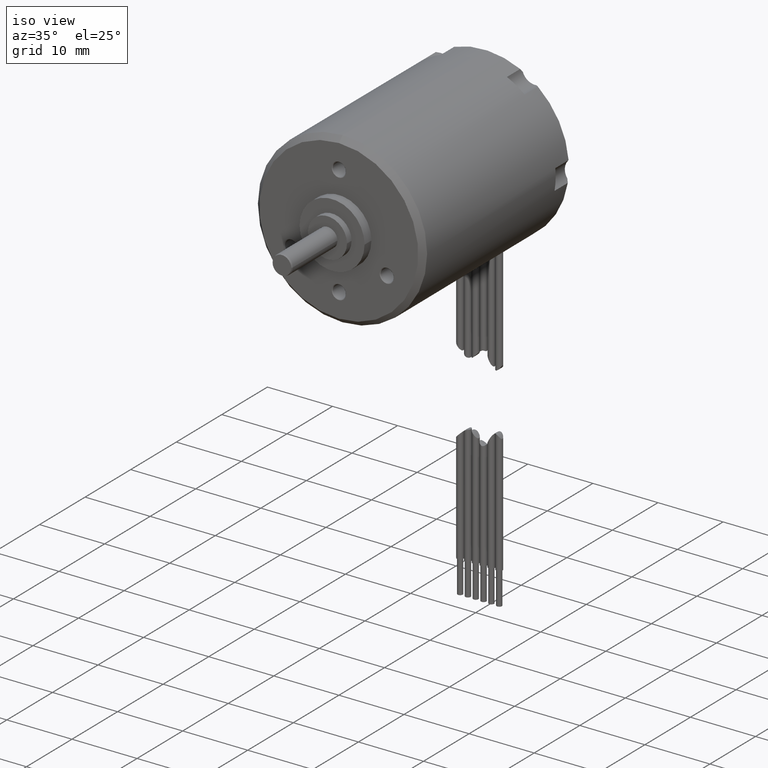
[diagram: clean part render]
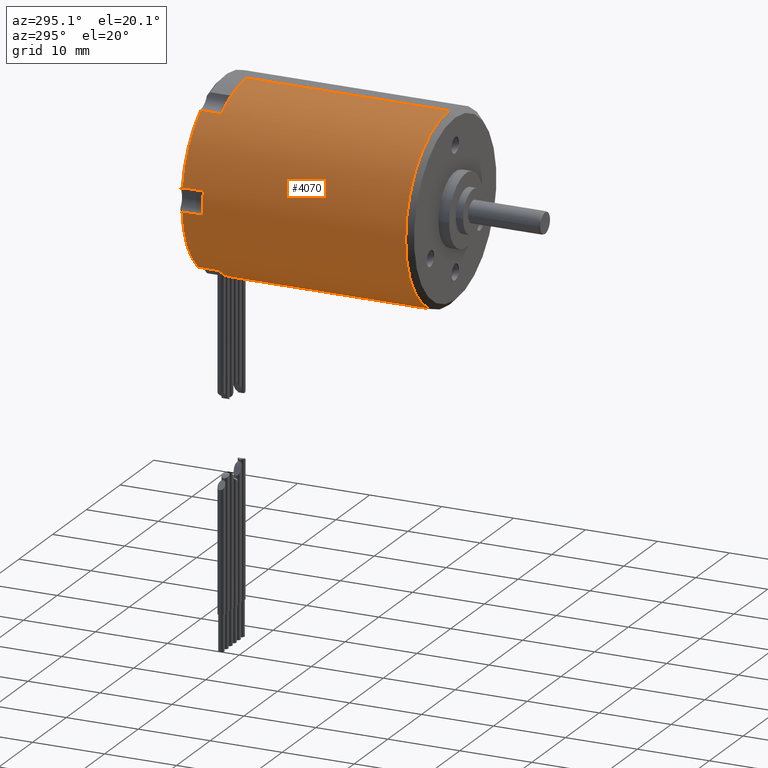
[diagram: tour spotlight — one face highlighted and labeled with its STEP entity id]
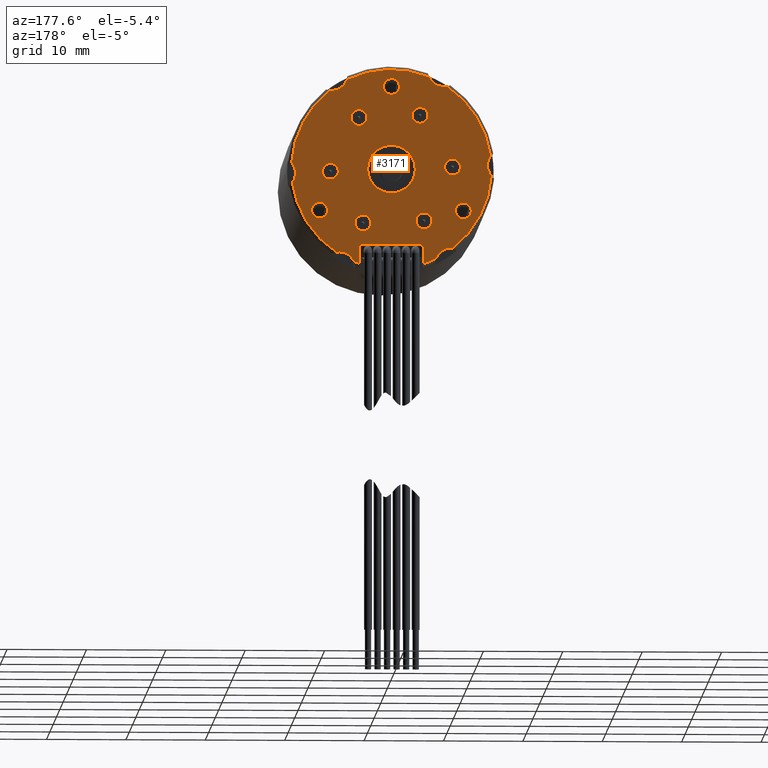
[diagram: tour spotlight — one face highlighted and labeled with its STEP entity id]
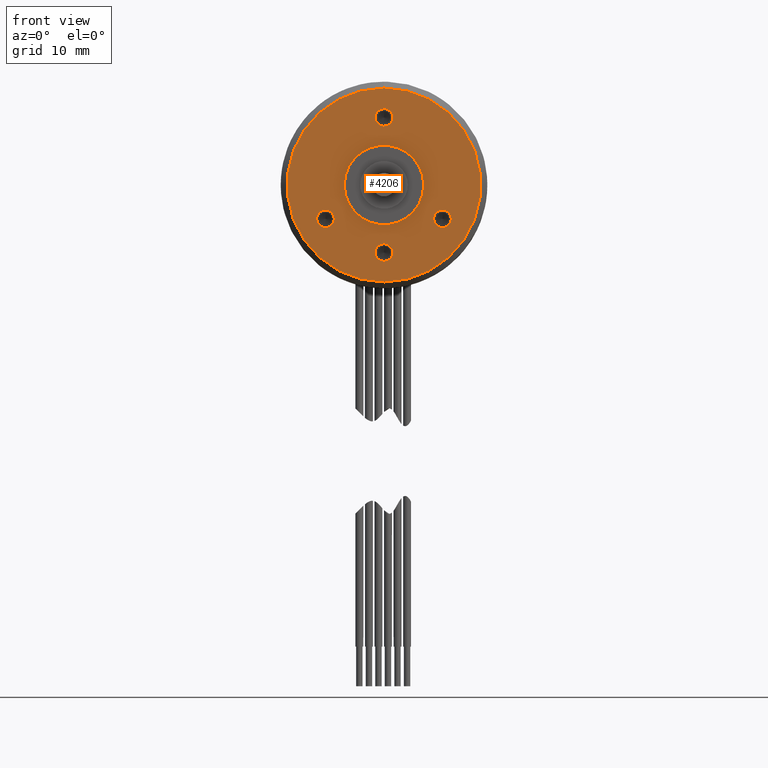
[diagram: tour spotlight — one face highlighted and labeled with its STEP entity id]
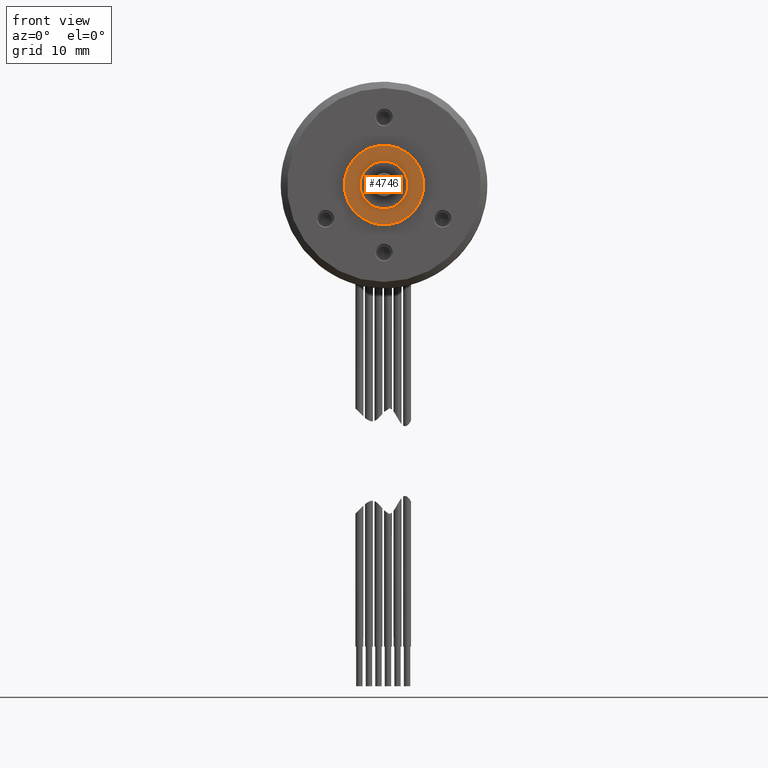
[diagram: tour spotlight — one face highlighted and labeled with its STEP entity id]
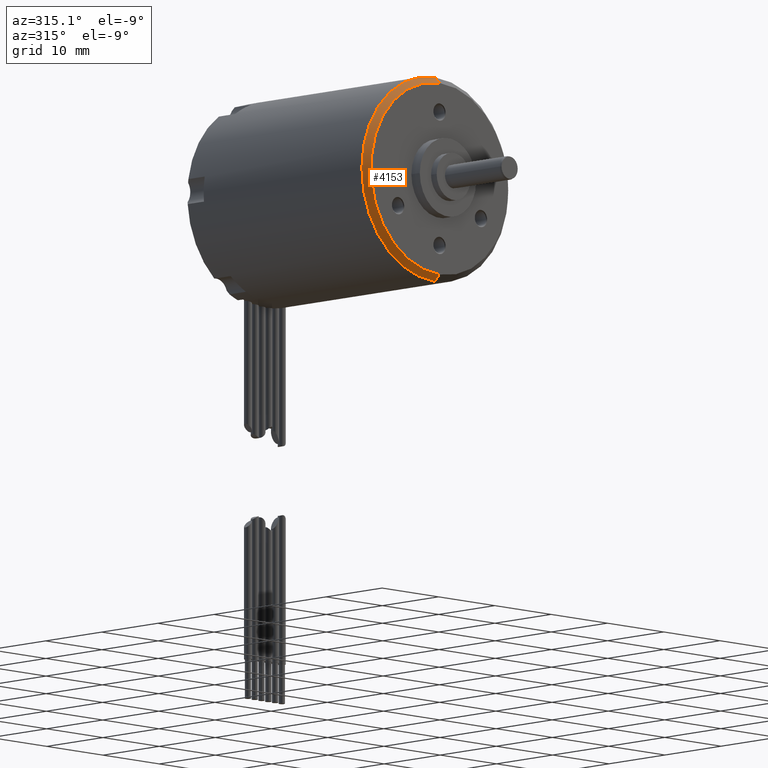
[diagram: tour spotlight — one face highlighted and labeled with its STEP entity id]
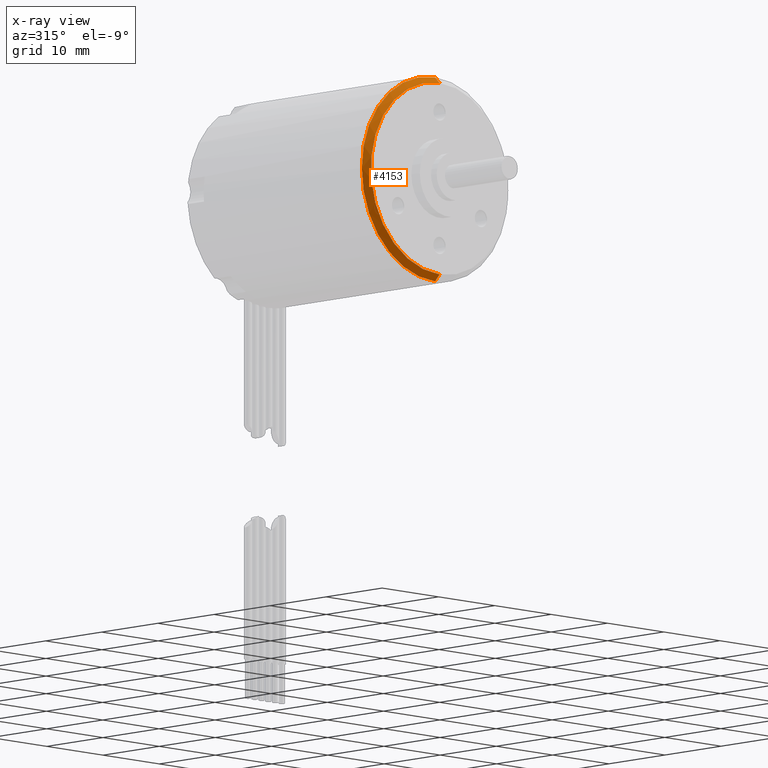
[diagram: x-ray of the same camera — body ghosted, this tour face saturated]
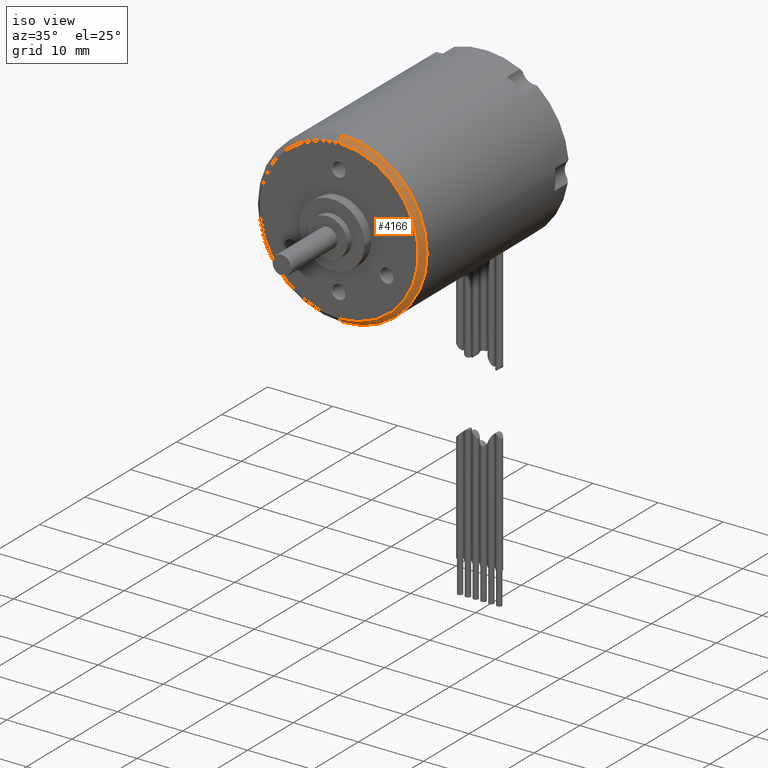
[diagram: tour spotlight — one face highlighted and labeled with its STEP entity id]
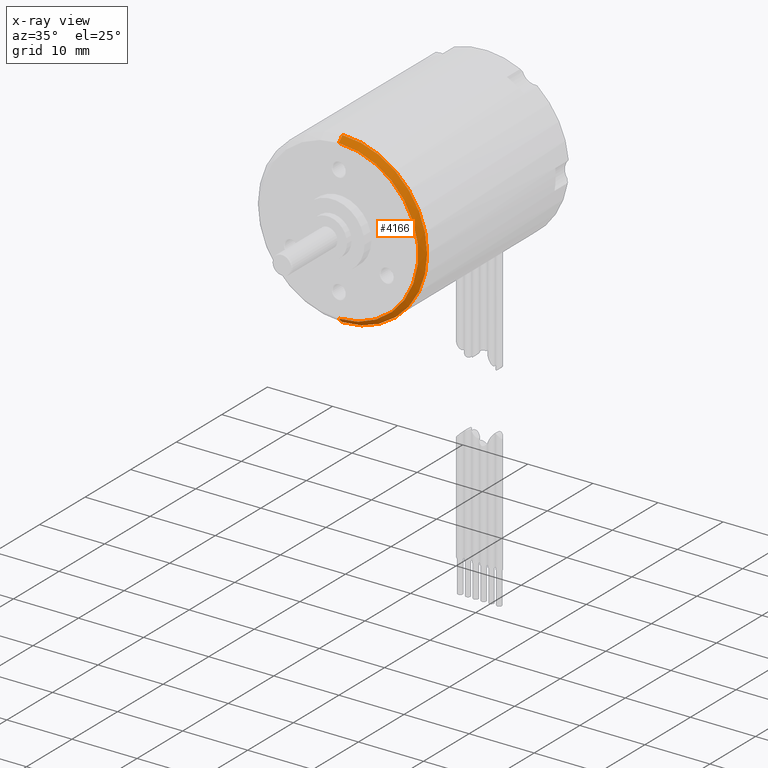
[diagram: x-ray of the same camera — body ghosted, this tour face saturated]
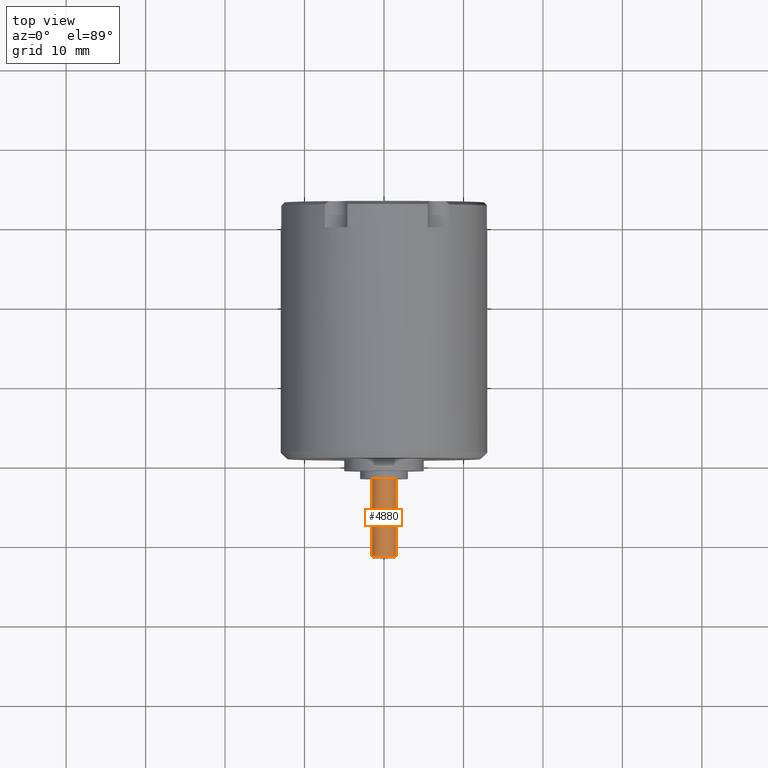
[diagram: tour spotlight — one face highlighted and labeled with its STEP entity id]
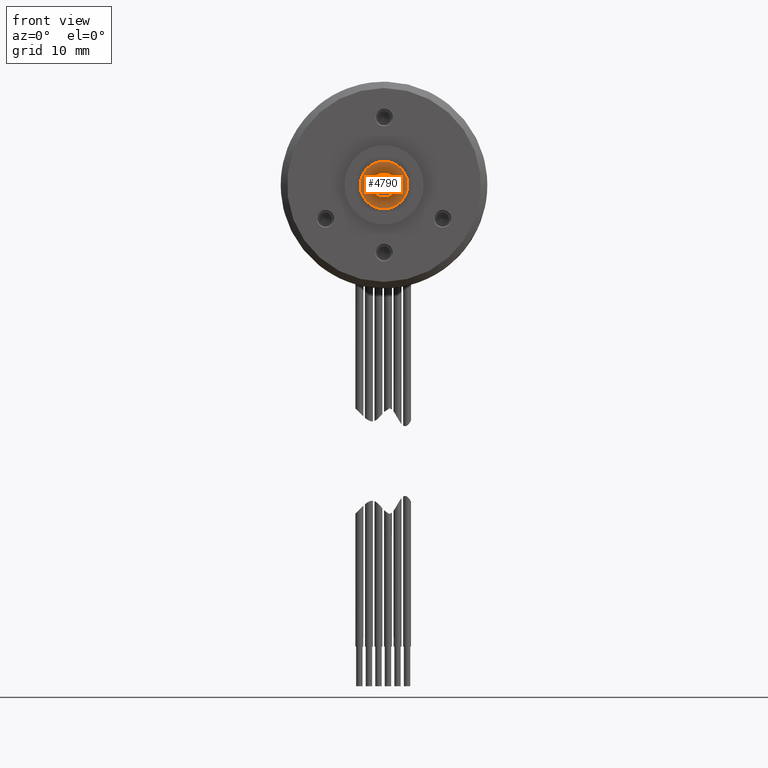
[diagram: tour spotlight — one face highlighted and labeled with its STEP entity id]
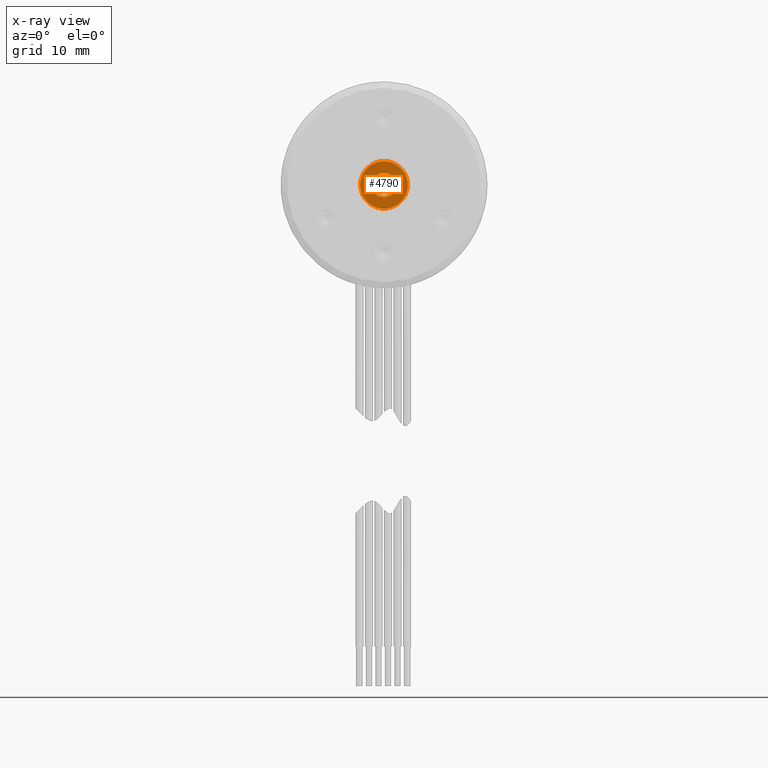
[diagram: x-ray of the same camera — body ghosted, this tour face saturated]
A machine part: a face-by-face anatomy tour. The part has 253 B-rep faces; the first image is the clean iso view, then the 8 largest visible faces are spotlighted one at a time (largest first), each with its STEP entity span.

Face 1 — auxiliary view, entity #4070. In plain terms, the highlighted cylindrical surface (partial cylindrical patch) has radius 13 mm, axis along (0, -1, 0).
Definition (entity closure, byte-faithful):
#207=CARTESIAN_POINT('',(0.E0,2.9E1,0.E0));
#208=DIRECTION('',(0.E0,-1.E0,0.E0));
#209=DIRECTION('',(-9.869516052119E-1,0.E0,1.610171697975E-1));
#210=AXIS2_PLACEMENT_3D('',#207,#208,#209);
#217=CARTESIAN_POINT('',(0.E0,2.9E1,0.E0));
#218=DIRECTION('',(0.E0,-1.E0,0.E0));
#219=DIRECTION('',(-6.329207621011E-1,0.E0,-7.742165775165E-1));
#220=AXIS2_PLACEMENT_3D('',#217,#218,#219);
#227=CARTESIAN_POINT('',(0.E0,2.9E1,0.E0));
#228=DIRECTION('',(0.E0,-1.E0,0.E0));
#229=DIRECTION('',(-3.540308430648E-1,0.E0,9.352337473374E-1));
#230=AXIS2_PLACEMENT_3D('',#227,#228,#229);
#980=CARTESIAN_POINT('',(-1.295286469153E1,3.190000000012E1,-1.106027253305E0));
#989=DIRECTION('',(4.624058989872E-10,1.E0,-2.361574537332E-10));
#990=VECTOR('',#989,2.900000000153E0);
#991=CARTESIAN_POINT('',(-8.227969907314E0,2.9E1,-1.006481550771E1));
#992=LINE('',#991,#990);
#993=CARTESIAN_POINT('',(0.E0,3.19E1,0.E0));
#994=DIRECTION('',(0.E0,1.E0,0.E0));
#995=DIRECTION('',(-6.329207620239E-1,0.E0,-7.742165775796E-1));
#996=AXIS2_PLACEMENT_3D('',#993,#994,#995);
#998=DIRECTION('',(-1.182134849728E-11,-1.E0,4.706745338105E-10));
#999=VECTOR('',#998,2.900000000124E0);
#1000=CARTESIAN_POINT('',(-1.295286469153E1,3.190000000012E1,
-1.106027253305E0));
#1001=LINE('',#1000,#999);
#1002=DIRECTION('',(-2.143878943990E-11,1.E0,-3.964445629806E-10));
#1003=VECTOR('',#1002,2.900000000153E0);
#1004=CARTESIAN_POINT('',(-1.283037086776E1,2.9E1,2.093223207368E0));
#1005=LINE('',#1004,#1003);
#1006=CARTESIAN_POINT('',(0.E0,2.9E1,0.E0));
#1007=DIRECTION('',(0.E0,1.E0,0.E0));
#1008=DIRECTION('',(-3.540308430648E-1,0.E0,9.352337473374E-1));
#1009=AXIS2_PLACEMENT_3D('',#1006,#1007,#1008);
#1011=DIRECTION('',(-1.969809791966E-11,-1.E0,1.209434443847E-14));
#1012=VECTOR('',#1011,2.82E1);
#1013=CARTESIAN_POINT('',(-1.555362689773E-9,2.9E1,1.3E1));
#1014=LINE('',#1013,#1012);
#1015=DIRECTION('',(2.746610921431E-11,1.E0,1.209434443847E-14));
#1016=VECTOR('',#1015,2.82E1);
#1017=CARTESIAN_POINT('',(-7.745458718845E-10,7.999999999997E-1,-1.3E1));
#1018=LINE('',#1017,#1016);
#1019=CARTESIAN_POINT('',(0.E0,2.9E1,0.E0));
#1020=DIRECTION('',(0.E0,1.E0,0.E0));
#1021=DIRECTION('',(0.E0,0.E0,-1.E0));
#1022=AXIS2_PLACEMENT_3D('',#1019,#1020,#1021);
#1029=CARTESIAN_POINT('',(-7.434280043073E0,3.190000000016E1,1.066449624862E1));
#1031=CARTESIAN_POINT('',(0.E0,3.19E1,0.E0));
#1032=DIRECTION('',(0.E0,-1.E0,0.E0));
#1033=DIRECTION('',(-5.718676957575E-1,0.E0,8.203458651990E-1));
#1034=AXIS2_PLACEMENT_3D('',#1031,#1032,#1033);
#1043=DIRECTION('',(-8.390070247301E-11,1.E0,-1.299411153320E-10));
#1044=VECTOR('',#1043,2.900000000155E0);
#1045=CARTESIAN_POINT('',(-7.434280042830E0,2.9E1,1.066449624899E1));
#1046=LINE('',#1045,#1044);
#1077=CARTESIAN_POINT('',(0.E0,7.999999999993E-1,0.E0));
#1078=DIRECTION('',(0.E0,1.E0,0.E0));
#1079=DIRECTION('',(0.E0,0.E0,-1.E0));
#1080=AXIS2_PLACEMENT_3D('',#1077,#1078,#1079);
#2495=CARTESIAN_POINT('',(-7.745458718845E-10,7.999999999997E-1,-1.3E1));
#2497=VERTEX_POINT('',#2495);
#2499=CARTESIAN_POINT('',(-3.110726971586E-9,7.999999999993E-1,1.3E1));
#2500=VERTEX_POINT('',#2499);
#2733=VERTEX_POINT('',#980);
#2734=CARTESIAN_POINT('',(-8.227969906311E0,3.19E1,-1.006481550853E1));
#2735=VERTEX_POINT('',#2734);
#2736=VERTEX_POINT('',#1029);
#2737=CARTESIAN_POINT('',(-1.283037086784E1,3.19E1,2.093223206863E0));
#2738=VERTEX_POINT('',#2737);
#2915=CARTESIAN_POINT('',(0.E0,2.9E1,-1.3E1));
#2916=CARTESIAN_POINT('',(-5.518584649016E0,2.9E1,-1.177052350032E1));
#2917=VERTEX_POINT('',#2915);
#2918=VERTEX_POINT('',#2916);
#2919=CARTESIAN_POINT('',(-4.602400959842E0,2.9E1,1.215803871539E1));
#2920=CARTESIAN_POINT('',(-3.110726787270E-9,2.9E1,1.3E1));
#2921=VERTEX_POINT('',#2919);
#2922=VERTEX_POINT('',#2920);
#2935=CARTESIAN_POINT('',(-7.434280042830E0,2.9E1,1.066449624899E1));
#2936=VERTEX_POINT('',#2935);
#2937=CARTESIAN_POINT('',(-1.283037086776E1,2.9E1,2.093223207368E0));
#2938=CARTESIAN_POINT('',(-1.295286469156E1,2.9E1,-1.106027251940E0));
#2939=VERTEX_POINT('',#2937);
#2940=VERTEX_POINT('',#2938);
#2941=CARTESIAN_POINT('',(-8.227969907314E0,2.9E1,-1.006481550771E1));
#2942=VERTEX_POINT('',#2941);
#4046=CARTESIAN_POINT('',(0.E0,2.9564E1,0.E0));
#4047=DIRECTION('',(0.E0,-1.E0,0.E0));
#4048=DIRECTION('',(0.E0,0.E0,-1.E0));
#4049=AXIS2_PLACEMENT_3D('',#4046,#4047,#4048);
#4050=CYLINDRICAL_SURFACE('',#4049,1.3E1);
#4051=ORIENTED_EDGE('',*,*,#3245,.F.);
#4052=ORIENTED_EDGE('',*,*,#4010,.T.);
#4053=ORIENTED_EDGE('',*,*,#4022,.T.);
#4054=ORIENTED_EDGE('',*,*,#4035,.T.);
#4055=ORIENTED_EDGE('',*,*,#3233,.F.);
#4056=ORIENTED_EDGE('',*,*,#4041,.T.);
#4058=ORIENTED_EDGE('',*,*,#4057,.F.);
#4060=ORIENTED_EDGE('',*,*,#4059,.F.);
#4061=ORIENTED_EDGE('',*,*,#3257,.F.);
#4062=ORIENTED_EDGE('',*,*,#3318,.T.);
#4063=ORIENTED_EDGE('',*,*,#3316,.T.);
#4065=ORIENTED_EDGE('',*,*,#4064,.F.);
#4066=ORIENTED_EDGE('',*,*,#3312,.T.);
#4067=ORIENTED_EDGE('',*,*,#3310,.T.);
#4068=EDGE_LOOP('',(#4051,#4052,#4053,#4054,#4055,#4056,#4058,#4060,#4061,#4062,
#4063,#4065,#4066,#4067));
#4069=FACE_OUTER_BOUND('',#4068,.F.);
#4070=ADVANCED_FACE('',(#4069),#4050,.T.);
#211=CIRCLE('',#210,1.3E1);
#221=CIRCLE('',#220,1.3E1);
#231=CIRCLE('',#230,1.3E1);
#997=CIRCLE('',#996,1.3E1);
#1010=CIRCLE('',#1009,1.3E1);
#1023=CIRCLE('',#1022,1.3E1);
#1035=CIRCLE('',#1034,1.3E1);
#1081=CIRCLE('',#1080,1.3E1);
#3233=EDGE_CURVE('',#2939,#2940,#211,.T.);
#3245=EDGE_CURVE('',#2942,#2918,#221,.T.);
#3257=EDGE_CURVE('',#2921,#2936,#231,.T.);
#3310=EDGE_CURVE('',#2917,#2918,#1023,.T.);
#3312=EDGE_CURVE('',#2497,#2917,#1018,.T.);
#3316=EDGE_CURVE('',#2922,#2500,#1014,.T.);
#3318=EDGE_CURVE('',#2921,#2922,#1010,.T.);
#4010=EDGE_CURVE('',#2942,#2735,#992,.T.);
#4022=EDGE_CURVE('',#2735,#2733,#997,.T.);
#4035=EDGE_CURVE('',#2733,#2940,#1001,.T.);
#4041=EDGE_CURVE('',#2939,#2738,#1005,.T.);
#4057=EDGE_CURVE('',#2736,#2738,#1035,.T.);
#4059=EDGE_CURVE('',#2936,#2736,#1046,.T.);
#4064=EDGE_CURVE('',#2497,#2500,#1081,.T.);

Face 2 — auxiliary view, entity #3171. In plain terms, the highlighted planar face has unit normal (0, 1, 0).
Definition (entity closure, byte-faithful):
#9=CARTESIAN_POINT('',(6.577643688E0,3.23E1,-1.247175222300E1));
#10=DIRECTION('',(0.E0,1.E0,0.E0));
#11=DIRECTION('',(-9.167290809652E-1,0.E0,3.995094393287E-1));
#12=AXIS2_PLACEMENT_3D('',#9,#10,#11);
#14=CARTESIAN_POINT('',(0.E0,3.23E1,0.E0));
#15=DIRECTION('',(0.E0,-1.E0,0.E0));
#16=DIRECTION('',(5.518812947483E-1,0.E0,-8.339226801730E-1));
#17=AXIS2_PLACEMENT_3D('',#14,#15,#16);
#19=CARTESIAN_POINT('',(0.E0,3.23E1,0.E0));
#20=DIRECTION('',(0.E0,-1.E0,0.E0));
#21=DIRECTION('',(9.981388732010E-1,0.E0,6.098188095645E-2));
#22=AXIS2_PLACEMENT_3D('',#19,#20,#21);
#24=CARTESIAN_POINT('',(7.512032411E0,3.23E1,1.193228264300E1));
#25=DIRECTION('',(0.E0,1.E0,0.E0));
#26=DIRECTION('',(1.123792203164E-1,0.E0,-9.936653917900E-1));
#27=AXIS2_PLACEMENT_3D('',#24,#25,#26);
#29=CARTESIAN_POINT('',(0.E0,3.23E1,0.E0));
#30=DIRECTION('',(0.E0,-1.E0,0.E0));
#31=DIRECTION('',(4.462575781263E-1,0.E0,8.949045613723E-1));
#32=AXIS2_PLACEMENT_3D('',#29,#30,#31);
#34=CARTESIAN_POINT('',(-6.577643688E0,3.23E1,1.247175222300E1));
#35=DIRECTION('',(0.E0,1.E0,0.E0));
#36=DIRECTION('',(9.167290790689E-1,0.E0,-3.995094436800E-1));
#37=AXIS2_PLACEMENT_3D('',#34,#35,#36);
#39=CARTESIAN_POINT('',(0.E0,3.23E1,0.E0));
#40=DIRECTION('',(0.E0,-1.E0,0.E0));
#41=DIRECTION('',(-5.518812946032E-1,0.E0,8.339226802690E-1));
#42=AXIS2_PLACEMENT_3D('',#39,#40,#41);
#44=CARTESIAN_POINT('',(-1.408967609900E1,3.23E1,5.3946958E-1));
#45=DIRECTION('',(0.E0,1.E0,0.E0));
#46=DIRECTION('',(8.043498662246E-1,0.E0,5.941559498182E-1));
#47=AXIS2_PLACEMENT_3D('',#44,#45,#46);
#49=CARTESIAN_POINT('',(0.E0,3.23E1,0.E0));
#50=DIRECTION('',(0.E0,-1.E0,0.E0));
#51=DIRECTION('',(-9.981388732234E-1,0.E0,-6.098188059023E-2));
#52=AXIS2_PLACEMENT_3D('',#49,#50,#51);
#54=CARTESIAN_POINT('',(-7.512032411E0,3.23E1,-1.193228264300E1));
#55=DIRECTION('',(0.E0,1.E0,0.E0));
#56=DIRECTION('',(-1.123792167600E-1,0.E0,9.936653921922E-1));
#57=AXIS2_PLACEMENT_3D('',#54,#55,#56);
#59=CARTESIAN_POINT('',(0.E0,3.23E1,0.E0));
#60=DIRECTION('',(0.E0,-1.E0,0.E0));
#61=DIRECTION('',(-4.462575785362E-1,0.E0,-8.949045611678E-1));
#62=AXIS2_PLACEMENT_3D('',#59,#60,#61);
#64=DIRECTION('',(7.071067822439E-1,0.E0,7.071067801292E-1));
#65=VECTOR('',#64,4.242640669333E-1);
#66=CARTESIAN_POINT('',(-3.999999998679E0,3.23E1,-9.821194603658E0));
#67=LINE('',#66,#65);
#68=DIRECTION('',(7.071067815920E-1,1.674765294537E-14,-7.071067807811E-1));
#69=VECTOR('',#68,4.242640673759E-1);
#70=CARTESIAN_POINT('',(3.699999999712E0,3.23E1,-9.521194605035E0));
#71=LINE('',#70,#69);
#72=CARTESIAN_POINT('',(0.E0,3.23E1,0.E0));
#73=DIRECTION('',(0.E0,-1.E0,0.E0));
#74=DIRECTION('',(3.174603173850E-1,0.E0,-9.482715575645E-1));
#75=AXIS2_PLACEMENT_3D('',#72,#73,#74);
#77=CARTESIAN_POINT('',(-9.04996547E0,3.23E1,-5.225E0));
#78=DIRECTION('',(0.E0,1.E0,0.E0));
#79=DIRECTION('',(1.E0,0.E0,4.694237887293E-9));
#80=AXIS2_PLACEMENT_3D('',#77,#78,#79);
#82=CARTESIAN_POINT('',(-9.04996547E0,3.23E1,-5.225E0));
#83=DIRECTION('',(0.E0,1.E0,0.E0));
#84=DIRECTION('',(-1.E0,0.E0,4.694239663650E-9));
#85=AXIS2_PLACEMENT_3D('',#82,#83,#84);
#87=CARTESIAN_POINT('',(9.04996547E0,3.23E1,-5.225E0));
#88=DIRECTION('',(0.E0,1.E0,0.E0));
#89=DIRECTION('',(1.E0,0.E0,4.694237887293E-9));
#90=AXIS2_PLACEMENT_3D('',#87,#88,#89);
#92=CARTESIAN_POINT('',(9.04996547E0,3.23E1,-5.225E0));
#93=DIRECTION('',(0.E0,1.E0,0.E0));
#94=DIRECTION('',(-1.E0,0.E0,4.694239663650E-9));
#95=AXIS2_PLACEMENT_3D('',#92,#93,#94);
#97=CARTESIAN_POINT('',(0.E0,3.23E1,1.045E1));
#98=DIRECTION('',(0.E0,1.E0,0.E0));
#99=DIRECTION('',(1.E0,0.E0,-8.995218792052E-9));
#100=AXIS2_PLACEMENT_3D('',#97,#98,#99);
#102=CARTESIAN_POINT('',(0.E0,3.23E1,1.045E1));
#103=DIRECTION('',(0.E0,1.E0,0.E0));
#104=DIRECTION('',(-1.E0,0.E0,-8.995218792052E-9));
#105=AXIS2_PLACEMENT_3D('',#102,#103,#104);
#107=CARTESIAN_POINT('',(4.102315572E0,3.23E1,6.516211088E0));
#108=DIRECTION('',(0.E0,1.E0,0.E0));
#109=DIRECTION('',(1.E0,0.E0,-5.681778603162E-9));
#110=AXIS2_PLACEMENT_3D('',#107,#108,#109);
#112=CARTESIAN_POINT('',(4.102315572E0,3.23E1,6.516211088E0));
#113=DIRECTION('',(0.E0,1.E0,0.E0));
#114=DIRECTION('',(-1.E0,0.E0,-5.681785708589E-9));
#115=AXIS2_PLACEMENT_3D('',#112,#113,#114);
#117=CARTESIAN_POINT('',(-3.592046553E0,3.23E1,6.810815044E0));
#118=DIRECTION('',(0.E0,1.E0,0.E0));
#119=DIRECTION('',(1.E0,0.E0,-2.924416264705E-11));
#120=AXIS2_PLACEMENT_3D('',#117,#118,#119);
#122=CARTESIAN_POINT('',(-3.592046553E0,3.23E1,6.810815044E0));
#123=DIRECTION('',(0.E0,1.E0,0.E0));
#124=DIRECTION('',(-1.E0,0.E0,-2.924416264705E-11));
#125=AXIS2_PLACEMENT_3D('',#122,#123,#124);
#127=CARTESIAN_POINT('',(-7.694362125E0,3.23E1,2.94603955E-1));
#128=DIRECTION('',(0.E0,1.E0,0.E0));
#129=DIRECTION('',(1.E0,0.E0,-1.497304114029E-9));
#130=AXIS2_PLACEMENT_3D('',#127,#128,#129);
#132=CARTESIAN_POINT('',(-7.694362125E0,3.23E1,2.94603955E-1));
#133=DIRECTION('',(0.E0,1.E0,0.E0));
#134=DIRECTION('',(-1.E0,0.E0,-1.497307666742E-9));
#135=AXIS2_PLACEMENT_3D('',#132,#133,#134);
#137=CARTESIAN_POINT('',(-4.102315572E0,3.23E1,-6.516211088E0));
#138=DIRECTION('',(0.E0,1.E0,0.E0));
#139=DIRECTION('',(1.E0,0.E0,-1.061790833035E-8));
#140=AXIS2_PLACEMENT_3D('',#137,#138,#139);
#142=CARTESIAN_POINT('',(-4.102315572E0,3.23E1,-6.516211088E0));
#143=DIRECTION('',(0.E0,1.E0,0.E0));
#144=DIRECTION('',(-1.E0,0.E0,-1.061790833035E-8));
#145=AXIS2_PLACEMENT_3D('',#142,#143,#144);
#147=CARTESIAN_POINT('',(3.592046553E0,3.23E1,-6.810815044E0));
#148=DIRECTION('',(0.E0,1.E0,0.E0));
#149=DIRECTION('',(1.E0,0.E0,8.572357046432E-9));
#150=AXIS2_PLACEMENT_3D('',#147,#148,#149);
#152=CARTESIAN_POINT('',(3.592046553E0,3.23E1,-6.810815044E0));
#153=DIRECTION('',(0.E0,1.E0,0.E0));
#154=DIRECTION('',(-1.E0,0.E0,8.572357046432E-9));
#155=AXIS2_PLACEMENT_3D('',#152,#153,#154);
#157=CARTESIAN_POINT('',(7.694362125E0,3.23E1,-2.94603955E-1));
#158=DIRECTION('',(0.E0,1.E0,0.E0));
#159=DIRECTION('',(1.E0,0.E0,1.004042277097E-8));
#160=AXIS2_PLACEMENT_3D('',#157,#158,#159);
#162=CARTESIAN_POINT('',(7.694362125E0,3.23E1,-2.94603955E-1));
#163=DIRECTION('',(0.E0,1.E0,0.E0));
#164=DIRECTION('',(-1.E0,0.E0,1.004042277097E-8));
#165=AXIS2_PLACEMENT_3D('',#162,#163,#164);
#167=CARTESIAN_POINT('',(0.E0,3.23E1,0.E0));
#168=DIRECTION('',(0.E0,1.E0,0.E0));
#169=DIRECTION('',(1.E0,0.E0,-2.716616413304E-9));
#170=AXIS2_PLACEMENT_3D('',#167,#168,#169);
#172=CARTESIAN_POINT('',(0.E0,3.23E1,0.E0));
#173=DIRECTION('',(0.E0,1.E0,0.E0));
#174=DIRECTION('',(-1.E0,0.E0,-2.716614488918E-9));
#175=AXIS2_PLACEMENT_3D('',#172,#173,#174);
#232=CARTESIAN_POINT('',(1.408967609900E1,3.23E1,-5.3946958E-1));
#233=DIRECTION('',(0.E0,-1.E0,0.E0));
#234=DIRECTION('',(-7.565631477280E-1,0.E0,6.539206400626E-1));
#235=AXIS2_PLACEMENT_3D('',#232,#233,#234);
#695=DIRECTION('',(-2.879637269885E-10,0.E0,-1.E0));
#696=VECTOR('',#695,8.999999998417E-1);
#697=CARTESIAN_POINT('',(-3.999999998679E0,3.23E1,-9.821194603658E0));
#698=LINE('',#697,#696);
#743=DIRECTION('',(-1.E0,0.E0,-4.451574244841E-11));
#744=VECTOR('',#743,7.399999999200E0);
#745=CARTESIAN_POINT('',(3.699999999712E0,3.23E1,-9.521194605035E0));
#746=LINE('',#745,#744);
#771=DIRECTION('',(-7.403480651082E-12,-3.456394071094E-10,1.E0));
#772=VECTOR('',#771,2.127027019242E0);
#773=CARTESIAN_POINT('',(3.999999998955E0,3.230000000074E1,-1.194822162316E1));
#774=LINE('',#773,#772);
#928=DIRECTION('',(-1.E0,0.E0,-1.106156540981E-8));
#929=VECTOR('',#928,3.390129239417E-2);
#930=CARTESIAN_POINT('',(-3.999999998938E0,3.23E1,-1.072119460350E1));
#931=LINE('',#930,#929);
#948=DIRECTION('',(-2.486499604841E-11,6.191056691236E-10,-1.E0));
#949=VECTOR('',#948,1.215624081354E0);
#950=CARTESIAN_POINT('',(-4.033901291332E0,3.23E1,-1.072119460388E1));
#951=LINE('',#950,#949);
#2623=CARTESIAN_POINT('',(-1.004996547E1,3.23E1,-5.224999998435E0));
#2624=VERTEX_POINT('',#2623);
#2625=CARTESIAN_POINT('',(-8.04996547E0,3.23E1,-5.224999995306E0));
#2626=VERTEX_POINT('',#2625);
#2627=CARTESIAN_POINT('',(4.744185526070E0,3.23E1,-1.167273334434E1));
#2628=CARTESIAN_POINT('',(6.953704315284E0,3.23E1,-1.050742577238E1));
#2629=VERTEX_POINT('',#2627);
#2630=VERTEX_POINT('',#2628);
#2631=CARTESIAN_POINT('',(1.248097636863E1,3.23E1,-1.727781492458E0));
#2632=VERTEX_POINT('',#2631);
#2633=CARTESIAN_POINT('',(1.257654980233E1,3.23E1,7.683717000512E-1));
#2634=CARTESIAN_POINT('',(7.736790852681E0,3.23E1,9.944951850154E0));
#2635=VERTEX_POINT('',#2633);
#2636=VERTEX_POINT('',#2634);
#2637=CARTESIAN_POINT('',(5.622845487779E0,3.23E1,1.127579748008E1));
#2638=VERTEX_POINT('',#2637);
#2639=CARTESIAN_POINT('',(-4.744185536641E0,3.23E1,1.167273333859E1));
#2640=VERTEX_POINT('',#2639);
#2641=CARTESIAN_POINT('',(-6.953704312274E0,3.23E1,1.050742577180E1));
#2642=VERTEX_POINT('',#2641);
#2643=CARTESIAN_POINT('',(-1.248097637084E1,3.23E1,1.727781476464E0));
#2644=VERTEX_POINT('',#2643);
#2645=CARTESIAN_POINT('',(-1.257654979932E1,3.23E1,-7.683716952354E-1));
#2646=VERTEX_POINT('',#2645);
#2647=CARTESIAN_POINT('',(-7.736790844782E0,3.23E1,-9.944951856299E0));
#2648=VERTEX_POINT('',#2647);
#2649=CARTESIAN_POINT('',(-5.622845490427E0,3.23E1,-1.127579747246E1));
#2650=VERTEX_POINT('',#2649);
#2651=CARTESIAN_POINT('',(-4.033901290858E0,3.23E1,-1.193681868739E1));
#2652=VERTEX_POINT('',#2651);
#2653=CARTESIAN_POINT('',(-3.999999998679E0,3.23E1,-9.821194603658E0));
#2654=CARTESIAN_POINT('',(-3.699999999488E0,3.23E1,-9.521194605365E0));
#2655=VERTEX_POINT('',#2653);
#2656=VERTEX_POINT('',#2654);
#2657=CARTESIAN_POINT('',(3.699999999712E0,3.23E1,-9.521194605035E0));
#2658=CARTESIAN_POINT('',(3.999999998939E0,3.23E1,-9.821194603918E0));
#2659=VERTEX_POINT('',#2657);
#2660=VERTEX_POINT('',#2658);
#2661=CARTESIAN_POINT('',(3.999999999051E0,3.23E1,-1.194822162531E1));
#2662=VERTEX_POINT('',#2661);
#2663=CARTESIAN_POINT('',(1.004996547E1,3.23E1,-5.224999995306E0));
#2664=CARTESIAN_POINT('',(8.04996547E0,3.23E1,-5.224999995306E0));
#2665=VERTEX_POINT('',#2663);
#2666=VERTEX_POINT('',#2664);
#2667=CARTESIAN_POINT('',(1.E0,3.23E1,1.044999999100E1));
#2668=CARTESIAN_POINT('',(-1.E0,3.23E1,1.044999999100E1));
#2669=VERTEX_POINT('',#2667);
#2670=VERTEX_POINT('',#2668);
#2671=CARTESIAN_POINT('',(5.102315572E0,3.23E1,6.516211082318E0));
#2672=CARTESIAN_POINT('',(3.102315572E0,3.23E1,6.516211082318E0));
#2673=VERTEX_POINT('',#2671);
#2674=VERTEX_POINT('',#2672);
#2675=CARTESIAN_POINT('',(-2.592046553E0,3.23E1,6.810815043971E0));
#2676=CARTESIAN_POINT('',(-4.592046553E0,3.23E1,6.810815043971E0));
#2677=VERTEX_POINT('',#2675);
#2678=VERTEX_POINT('',#2676);
#2679=CARTESIAN_POINT('',(-6.694362125E0,3.23E1,2.946039535027E-1));
#2680=CARTESIAN_POINT('',(-8.694362125E0,3.23E1,2.946039535027E-1));
#2681=VERTEX_POINT('',#2679);
#2682=VERTEX_POINT('',#2680);
#2683=CARTESIAN_POINT('',(-3.102315572E0,3.23E1,-6.516211098618E0));
#2684=CARTESIAN_POINT('',(-5.102315572E0,3.23E1,-6.516211098618E0));
#2685=VERTEX_POINT('',#2683);
#2686=VERTEX_POINT('',#2684);
#2687=CARTESIAN_POINT('',(4.592046553E0,3.23E1,-6.810815035428E0));
#2688=CARTESIAN_POINT('',(2.592046553E0,3.23E1,-6.810815035428E0));
#2689=VERTEX_POINT('',#2687);
#2690=VERTEX_POINT('',#2688);
#2691=CARTESIAN_POINT('',(8.694362125E0,3.23E1,-2.946039449596E-1));
#2692=CARTESIAN_POINT('',(6.694362125E0,3.23E1,-2.946039449596E-1));
#2693=VERTEX_POINT('',#2691);
#2694=VERTEX_POINT('',#2692);
#2695=CARTESIAN_POINT('',(3.E0,3.23E1,-8.149849239913E-9));
#2696=CARTESIAN_POINT('',(-3.E0,3.23E1,-8.149843390059E-9));
#2697=VERTEX_POINT('',#2695);
#2698=VERTEX_POINT('',#2696);
#2727=CARTESIAN_POINT('',(-4.033901291332E0,3.23E1,-1.072119460387E1));
#2728=VERTEX_POINT('',#2727);
#2729=CARTESIAN_POINT('',(-3.999999998938E0,3.23E1,-1.072119460350E1));
#2730=VERTEX_POINT('',#2729);
#3065=CARTESIAN_POINT('',(5.540350400679E-10,3.23E1,3.278341597976E-1));
#3066=DIRECTION('',(0.E0,1.E0,0.E0));
#3067=DIRECTION('',(1.E0,0.E0,0.E0));
#3068=AXIS2_PLACEMENT_3D('',#3065,#3066,#3067);
#3069=PLANE('',#3068);
#3071=ORIENTED_EDGE('',*,*,#3070,.T.);
#3073=ORIENTED_EDGE('',*,*,#3072,.T.);
#3075=ORIENTED_EDGE('',*,*,#3074,.F.);
#3077=ORIENTED_EDGE('',*,*,#3076,.T.);
#3079=ORIENTED_EDGE('',*,*,#3078,.T.);
#3081=ORIENTED_EDGE('',*,*,#3080,.T.);
#3083=ORIENTED_EDGE('',*,*,#3082,.T.);
#3085=ORIENTED_EDGE('',*,*,#3084,.T.);
#3087=ORIENTED_EDGE('',*,*,#3086,.T.);
#3089=ORIENTED_EDGE('',*,*,#3088,.T.);
#3091=ORIENTED_EDGE('',*,*,#3090,.T.);
#3093=ORIENTED_EDGE('',*,*,#3092,.T.);
#3095=ORIENTED_EDGE('',*,*,#3094,.F.);
#3097=ORIENTED_EDGE('',*,*,#3096,.F.);
#3099=ORIENTED_EDGE('',*,*,#3098,.F.);
#3101=ORIENTED_EDGE('',*,*,#3100,.T.);
#3103=ORIENTED_EDGE('',*,*,#3102,.F.);
#3105=ORIENTED_EDGE('',*,*,#3104,.T.);
#3107=ORIENTED_EDGE('',*,*,#3106,.F.);
#3109=ORIENTED_EDGE('',*,*,#3108,.T.);
#3110=EDGE_LOOP('',(#3071,#3073,#3075,#3077,#3079,#3081,#3083,#3085,#3087,#3089,
#3091,#3093,#3095,#3097,#3099,#3101,#3103,#3105,#3107,#3109));
#3111=FACE_OUTER_BOUND('',#3110,.F.);
#3113=ORIENTED_EDGE('',*,*,#3112,.T.);
#3115=ORIENTED_EDGE('',*,*,#3114,.T.);
#3116=EDGE_LOOP('',(#3113,#3115));
#3117=FACE_BOUND('',#3116,.F.);
#3119=ORIENTED_EDGE('',*,*,#3118,.T.);
#3121=ORIENTED_EDGE('',*,*,#3120,.T.);
#3122=EDGE_LOOP('',(#3119,#3121));
#3123=FACE_BOUND('',#3122,.F.);
#3125=ORIENTED_EDGE('',*,*,#3124,.T.);
#3127=ORIENTED_EDGE('',*,*,#3126,.T.);
#3128=EDGE_LOOP('',(#3125,#3127));
#3129=FACE_BOUND('',#3128,.F.);
#3131=ORIENTED_EDGE('',*,*,#3130,.T.);
#3133=ORIENTED_EDGE('',*,*,#3132,.T.);
#3134=EDGE_LOOP('',(#3131,#3133));
#3135=FACE_BOUND('',#3134,.F.);
#3137=ORIENTED_EDGE('',*,*,#3136,.T.);
#3139=ORIENTED_EDGE('',*,*,#3138,.T.);
#3140=EDGE_LOOP('',(#3137,#3139));
#3141=FACE_BOUND('',#3140,.F.);
#3143=ORIENTED_EDGE('',*,*,#3142,.T.);
#3145=ORIENTED_EDGE('',*,*,#3144,.T.);
#3146=EDGE_LOOP('',(#3143,#3145));
#3147=FACE_BOUND('',#3146,.F.);
#3149=ORIENTED_EDGE('',*,*,#3148,.T.);
#3151=ORIENTED_EDGE('',*,*,#3150,.T.);
#3152=EDGE_LOOP('',(#3149,#3151));
#3153=FACE_BOUND('',#3152,.F.);
#3155=ORIENTED_EDGE('',*,*,#3154,.T.);
#3157=ORIENTED_EDGE('',*,*,#3156,.T.);
#3158=EDGE_LOOP('',(#3155,#3157));
#3159=FACE_BOUND('',#3158,.F.);
#3161=ORIENTED_EDGE('',*,*,#3160,.T.);
#3162=ORIENTED_EDGE('',*,*,#3054,.T.);
#3163=EDGE_LOOP('',(#3161,#3162));
#3164=FACE_BOUND('',#3163,.F.);
#3166=ORIENTED_EDGE('',*,*,#3165,.T.);
#3168=ORIENTED_EDGE('',*,*,#3167,.T.);
#3169=EDGE_LOOP('',(#3166,#3168));
#3170=FACE_BOUND('',#3169,.F.);
#3171=ADVANCED_FACE('',(#3111,#3117,#3123,#3129,#3135,#3141,#3147,#3153,#3159,
#3164,#3170),#3069,.T.);
#13=CIRCLE('',#12,2.E0);
#18=CIRCLE('',#17,1.26E1);
#23=CIRCLE('',#22,1.26E1);
#28=CIRCLE('',#27,2.E0);
#33=CIRCLE('',#32,1.26E1);
#38=CIRCLE('',#37,2.E0);
#43=CIRCLE('',#42,1.26E1);
#48=CIRCLE('',#47,2.E0);
#53=CIRCLE('',#52,1.26E1);
#58=CIRCLE('',#57,2.E0);
#63=CIRCLE('',#62,1.26E1);
#76=CIRCLE('',#75,1.26E1);
#81=CIRCLE('',#80,1.E0);
#86=CIRCLE('',#85,1.E0);
#91=CIRCLE('',#90,1.E0);
#96=CIRCLE('',#95,1.E0);
#101=CIRCLE('',#100,1.E0);
#106=CIRCLE('',#105,1.E0);
#111=CIRCLE('',#110,1.E0);
#116=CIRCLE('',#115,1.E0);
#121=CIRCLE('',#120,1.E0);
#126=CIRCLE('',#125,1.E0);
#131=CIRCLE('',#130,1.E0);
#136=CIRCLE('',#135,1.E0);
#141=CIRCLE('',#140,1.E0);
#146=CIRCLE('',#145,1.E0);
#151=CIRCLE('',#150,1.E0);
#156=CIRCLE('',#155,1.E0);
#161=CIRCLE('',#160,1.E0);
#166=CIRCLE('',#165,1.E0);
#171=CIRCLE('',#170,3.E0);
#176=CIRCLE('',#175,3.E0);
#236=CIRCLE('',#235,2.E0);
#3054=EDGE_CURVE('',#2694,#2693,#166,.T.);
#3070=EDGE_CURVE('',#2629,#2630,#13,.T.);
#3072=EDGE_CURVE('',#2630,#2632,#18,.T.);
#3074=EDGE_CURVE('',#2635,#2632,#236,.T.);
#3076=EDGE_CURVE('',#2635,#2636,#23,.T.);
#3078=EDGE_CURVE('',#2636,#2638,#28,.T.);
#3080=EDGE_CURVE('',#2638,#2640,#33,.T.);
#3082=EDGE_CURVE('',#2640,#2642,#38,.T.);
#3084=EDGE_CURVE('',#2642,#2644,#43,.T.);
#3086=EDGE_CURVE('',#2644,#2646,#48,.T.);
#3088=EDGE_CURVE('',#2646,#2648,#53,.T.);
#3090=EDGE_CURVE('',#2648,#2650,#58,.T.);
#3092=EDGE_CURVE('',#2650,#2652,#63,.T.);
#3094=EDGE_CURVE('',#2728,#2652,#951,.T.);
#3096=EDGE_CURVE('',#2730,#2728,#931,.T.);
#3098=EDGE_CURVE('',#2655,#2730,#698,.T.);
#3100=EDGE_CURVE('',#2655,#2656,#67,.T.);
#3102=EDGE_CURVE('',#2659,#2656,#746,.T.);
#3104=EDGE_CURVE('',#2659,#2660,#71,.T.);
#3106=EDGE_CURVE('',#2662,#2660,#774,.T.);
#3108=EDGE_CURVE('',#2662,#2629,#76,.T.);
#3112=EDGE_CURVE('',#2626,#2624,#81,.T.);
#3114=EDGE_CURVE('',#2624,#2626,#86,.T.);
#3118=EDGE_CURVE('',#2665,#2666,#91,.T.);
#3120=EDGE_CURVE('',#2666,#2665,#96,.T.);
#3124=EDGE_CURVE('',#2669,#2670,#101,.T.);
#3126=EDGE_CURVE('',#2670,#2669,#106,.T.);
#3130=EDGE_CURVE('',#2673,#2674,#111,.T.);
#3132=EDGE_CURVE('',#2674,#2673,#116,.T.);
#3136=EDGE_CURVE('',#2677,#2678,#121,.T.);
#3138=EDGE_CURVE('',#2678,#2677,#126,.T.);
#3142=EDGE_CURVE('',#2681,#2682,#131,.T.);
#3144=EDGE_CURVE('',#2682,#2681,#136,.T.);
#3148=EDGE_CURVE('',#2685,#2686,#141,.T.);
#3150=EDGE_CURVE('',#2686,#2685,#146,.T.);
#3154=EDGE_CURVE('',#2689,#2690,#151,.T.);
#3156=EDGE_CURVE('',#2690,#2689,#156,.T.);
#3160=EDGE_CURVE('',#2693,#2694,#161,.T.);
#3165=EDGE_CURVE('',#2697,#2698,#171,.T.);
#3167=EDGE_CURVE('',#2698,#2697,#176,.T.);

Face 3 — front view, entity #4206. In plain terms, the highlighted planar face has unit normal (0, 1, 0).
Definition (entity closure, byte-faithful):
#1095=CARTESIAN_POINT('',(0.E0,6.732392421327E-13,0.E0));
#1096=DIRECTION('',(0.E0,1.E0,0.E0));
#1097=DIRECTION('',(0.E0,0.E0,-1.E0));
#1098=AXIS2_PLACEMENT_3D('',#1095,#1096,#1097);
#1100=CARTESIAN_POINT('',(0.E0,6.750155989721E-13,0.E0));
#1101=DIRECTION('',(0.E0,1.E0,0.E0));
#1102=DIRECTION('',(0.E0,0.E0,1.E0));
#1103=AXIS2_PLACEMENT_3D('',#1100,#1101,#1102);
#1105=CARTESIAN_POINT('',(0.E0,1.356692536092E-13,8.5E0));
#1106=DIRECTION('',(0.E0,-1.E0,0.E0));
#1107=DIRECTION('',(0.E0,0.E0,-1.E0));
#1108=AXIS2_PLACEMENT_3D('',#1105,#1106,#1107);
#1110=CARTESIAN_POINT('',(0.E0,1.347810751895E-13,8.5E0));
#1111=DIRECTION('',(0.E0,-1.E0,0.E0));
#1112=DIRECTION('',(0.E0,0.E0,1.E0));
#1113=AXIS2_PLACEMENT_3D('',#1110,#1111,#1112);
#1115=CARTESIAN_POINT('',(-7.361215932E0,1.354472090043E-13,-4.25E0));
#1116=DIRECTION('',(0.E0,-1.E0,0.E0));
#1117=DIRECTION('',(-1.089163829833E-8,0.E0,-1.E0));
#1118=AXIS2_PLACEMENT_3D('',#1115,#1116,#1117);
#1120=CARTESIAN_POINT('',(-7.361215932E0,1.352251643993E-13,-4.25E0));
#1121=DIRECTION('',(0.E0,-1.E0,0.E0));
#1122=DIRECTION('',(-1.089163749089E-8,0.E0,1.E0));
#1123=AXIS2_PLACEMENT_3D('',#1120,#1121,#1122);
#1125=CARTESIAN_POINT('',(7.361215932E0,1.356692536092E-13,-4.25E0));
#1126=DIRECTION('',(0.E0,-1.E0,0.E0));
#1127=DIRECTION('',(1.089163668346E-8,0.E0,-1.E0));
#1128=AXIS2_PLACEMENT_3D('',#1125,#1126,#1127);
#1130=CARTESIAN_POINT('',(7.361215932E0,1.352251643993E-13,-4.25E0));
#1131=DIRECTION('',(0.E0,-1.E0,0.E0));
#1132=DIRECTION('',(1.089163264629E-8,0.E0,1.E0));
#1133=AXIS2_PLACEMENT_3D('',#1130,#1131,#1132);
#1135=CARTESIAN_POINT('',(0.E0,1.347810751895E-13,-8.5E0));
#1136=DIRECTION('',(0.E0,-1.E0,0.E0));
#1137=DIRECTION('',(0.E0,0.E0,-1.E0));
#1138=AXIS2_PLACEMENT_3D('',#1135,#1136,#1137);
#1140=CARTESIAN_POINT('',(0.E0,1.350031197944E-13,-8.5E0));
#1141=DIRECTION('',(0.E0,-1.E0,0.E0));
#1142=DIRECTION('',(0.E0,0.E0,1.E0));
#1143=AXIS2_PLACEMENT_3D('',#1140,#1141,#1142);
#1145=CARTESIAN_POINT('',(0.E0,0.E0,0.E0));
#1146=DIRECTION('',(0.E0,-1.E0,0.E0));
#1147=DIRECTION('',(1.E0,0.E0,0.E0));
#1148=AXIS2_PLACEMENT_3D('',#1145,#1146,#1147);
#1150=CARTESIAN_POINT('',(0.E0,0.E0,0.E0));
#1151=DIRECTION('',(0.E0,-1.E0,0.E0));
#1152=DIRECTION('',(-1.E0,0.E0,-1.367351674646E-10));
#1153=AXIS2_PLACEMENT_3D('',#1150,#1151,#1152);
#2496=CARTESIAN_POINT('',(-9.691743511770E-10,-6.726565970894E-10,
-1.219999999933E1));
#2498=VERTEX_POINT('',#2496);
#2501=CARTESIAN_POINT('',(0.E0,-3.362140195880E-10,1.219999999966E1));
#2502=VERTEX_POINT('',#2501);
#2503=CARTESIAN_POINT('',(0.E0,1.356692536092E-13,7.4E0));
#2504=CARTESIAN_POINT('',(0.E0,1.356692536092E-13,9.6E0));
#2505=VERTEX_POINT('',#2503);
#2506=VERTEX_POINT('',#2504);
#2507=CARTESIAN_POINT('',(-7.361215943981E0,1.354472090043E-13,-5.35E0));
#2508=CARTESIAN_POINT('',(-7.361215943981E0,1.354472090043E-13,-3.15E0));
#2509=VERTEX_POINT('',#2507);
#2510=VERTEX_POINT('',#2508);
#2511=CARTESIAN_POINT('',(7.361215943981E0,1.356692536092E-13,-5.35E0));
#2512=CARTESIAN_POINT('',(7.361215943981E0,1.356692536092E-13,-3.15E0));
#2513=VERTEX_POINT('',#2511);
#2514=VERTEX_POINT('',#2512);
#2515=CARTESIAN_POINT('',(0.E0,1.347810751895E-13,-9.6E0));
#2516=CARTESIAN_POINT('',(0.E0,1.347810751895E-13,-7.4E0));
#2517=VERTEX_POINT('',#2515);
#2518=VERTEX_POINT('',#2516);
#2911=CARTESIAN_POINT('',(5.E0,0.E0,0.E0));
#2912=CARTESIAN_POINT('',(-5.E0,0.E0,-6.836741139174E-10));
#2913=VERTEX_POINT('',#2911);
#2914=VERTEX_POINT('',#2912);
#4167=CARTESIAN_POINT('',(0.E0,0.E0,0.E0));
#4168=DIRECTION('',(0.E0,1.E0,0.E0));
#4169=DIRECTION('',(0.E0,0.E0,-1.E0));
#4170=AXIS2_PLACEMENT_3D('',#4167,#4168,#4169);
#4171=PLANE('',#4170);
#4172=ORIENTED_EDGE('',*,*,#4149,.T.);
#4173=ORIENTED_EDGE('',*,*,#4159,.T.);
#4174=EDGE_LOOP('',(#4172,#4173));
#4175=FACE_OUTER_BOUND('',#4174,.F.);
#4177=ORIENTED_EDGE('',*,*,#4176,.T.);
#4179=ORIENTED_EDGE('',*,*,#4178,.T.);
#4180=EDGE_LOOP('',(#4177,#4179));
#4181=FACE_BOUND('',#4180,.F.);
#4183=ORIENTED_EDGE('',*,*,#4182,.T.);
#4185=ORIENTED_EDGE('',*,*,#4184,.T.);
#4186=EDGE_LOOP('',(#4183,#4185));
#4187=FACE_BOUND('',#4186,.F.);
#4189=ORIENTED_EDGE('',*,*,#4188,.T.);
#4191=ORIENTED_EDGE('',*,*,#4190,.T.);
#4192=EDGE_LOOP('',(#4189,#4191));
#4193=FACE_BOUND('',#4192,.F.);
#4195=ORIENTED_EDGE('',*,*,#4194,.T.);
#4197=ORIENTED_EDGE('',*,*,#4196,.T.);
#4198=EDGE_LOOP('',(#4195,#4197));
#4199=FACE_BOUND('',#4198,.F.);
#4201=ORIENTED_EDGE('',*,*,#4200,.T.);
#4203=ORIENTED_EDGE('',*,*,#4202,.T.);
#4204=EDGE_LOOP('',(#4201,#4203));
#4205=FACE_BOUND('',#4204,.F.);
#4206=ADVANCED_FACE('',(#4175,#4181,#4187,#4193,#4199,#4205),#4171,.F.);
#1099=CIRCLE('',#1098,1.22E1);
#1104=CIRCLE('',#1103,1.22E1);
#1109=CIRCLE('',#1108,1.1E0);
#1114=CIRCLE('',#1113,1.1E0);
#1119=CIRCLE('',#1118,1.1E0);
#1124=CIRCLE('',#1123,1.1E0);
#1129=CIRCLE('',#1128,1.1E0);
#1134=CIRCLE('',#1133,1.1E0);
#1139=CIRCLE('',#1138,1.1E0);
#1144=CIRCLE('',#1143,1.1E0);
#1149=CIRCLE('',#1148,5.E0);
#1154=CIRCLE('',#1153,5.E0);
#4149=EDGE_CURVE('',#2498,#2502,#1099,.T.);
#4159=EDGE_CURVE('',#2502,#2498,#1104,.T.);
#4176=EDGE_CURVE('',#2505,#2506,#1109,.T.);
#4178=EDGE_CURVE('',#2506,#2505,#1114,.T.);
#4182=EDGE_CURVE('',#2509,#2510,#1119,.T.);
#4184=EDGE_CURVE('',#2510,#2509,#1124,.T.);
#4188=EDGE_CURVE('',#2513,#2514,#1129,.T.);
#4190=EDGE_CURVE('',#2514,#2513,#1134,.T.);
#4194=EDGE_CURVE('',#2517,#2518,#1139,.T.);
#4196=EDGE_CURVE('',#2518,#2517,#1144,.T.);
#4200=EDGE_CURVE('',#2913,#2914,#1149,.T.);
#4202=EDGE_CURVE('',#2914,#2913,#1154,.T.);

Face 4 — front view, entity #4746. In plain terms, the highlighted planar face has unit normal (0, 1, 0).
Definition (entity closure, byte-faithful):
#1451=CARTESIAN_POINT('',(0.E0,-1.5E0,0.E0));
#1452=DIRECTION('',(0.E0,1.E0,0.E0));
#1453=DIRECTION('',(-1.E0,0.E0,0.E0));
#1454=AXIS2_PLACEMENT_3D('',#1451,#1452,#1453);
#1456=CARTESIAN_POINT('',(0.E0,-1.5E0,0.E0));
#1457=DIRECTION('',(0.E0,1.E0,0.E0));
#1458=DIRECTION('',(1.E0,0.E0,0.E0));
#1459=AXIS2_PLACEMENT_3D('',#1456,#1457,#1458);
#1461=CARTESIAN_POINT('',(0.E0,-1.5E0,0.E0));
#1462=DIRECTION('',(0.E0,-1.E0,0.E0));
#1463=DIRECTION('',(1.E0,0.E0,1.367351674407E-10));
#1464=AXIS2_PLACEMENT_3D('',#1461,#1462,#1463);
#1466=CARTESIAN_POINT('',(0.E0,-1.5E0,0.E0));
#1467=DIRECTION('',(0.E0,-1.E0,0.E0));
#1468=DIRECTION('',(-1.E0,0.E0,0.E0));
#1469=AXIS2_PLACEMENT_3D('',#1466,#1467,#1468);
#2591=CARTESIAN_POINT('',(-5.E0,-1.5E0,0.E0));
#2592=CARTESIAN_POINT('',(5.E0,-1.5E0,0.E0));
#2593=VERTEX_POINT('',#2591);
#2594=VERTEX_POINT('',#2592);
#2951=CARTESIAN_POINT('',(3.E0,-1.5E0,4.102055023222E-10));
#2952=CARTESIAN_POINT('',(-3.E0,-1.5E0,0.E0));
#2953=VERTEX_POINT('',#2951);
#2954=VERTEX_POINT('',#2952);
#4731=CARTESIAN_POINT('',(0.E0,-1.5E0,0.E0));
#4732=DIRECTION('',(0.E0,1.E0,0.E0));
#4733=DIRECTION('',(1.E0,0.E0,0.E0));
#4734=AXIS2_PLACEMENT_3D('',#4731,#4732,#4733);
#4735=PLANE('',#4734);
#4736=ORIENTED_EDGE('',*,*,#4711,.T.);
#4737=ORIENTED_EDGE('',*,*,#4725,.T.);
#4738=EDGE_LOOP('',(#4736,#4737));
#4739=FACE_OUTER_BOUND('',#4738,.F.);
#4741=ORIENTED_EDGE('',*,*,#4740,.T.);
#4743=ORIENTED_EDGE('',*,*,#4742,.T.);
#4744=EDGE_LOOP('',(#4741,#4743));
#4745=FACE_BOUND('',#4744,.F.);
#4746=ADVANCED_FACE('',(#4739,#4745),#4735,.F.);
#1455=CIRCLE('',#1454,5.E0);
#1460=CIRCLE('',#1459,5.E0);
#1465=CIRCLE('',#1464,3.E0);
#1470=CIRCLE('',#1469,3.E0);
#4711=EDGE_CURVE('',#2593,#2594,#1455,.T.);
#4725=EDGE_CURVE('',#2594,#2593,#1460,.T.);
#4740=EDGE_CURVE('',#2953,#2954,#1465,.T.);
#4742=EDGE_CURVE('',#2954,#2953,#1470,.T.);

Face 5 — auxiliary view, entity #4153. An x-ray twin of the same camera follows (body ghosted, this face saturated) — the face is partly hidden behind the body. In plain terms, the highlighted conical surface has half-angle 45 deg.
Definition (entity closure, byte-faithful):
#1077=CARTESIAN_POINT('',(0.E0,7.999999999993E-1,0.E0));
#1078=DIRECTION('',(0.E0,1.E0,0.E0));
#1079=DIRECTION('',(0.E0,0.E0,-1.E0));
#1080=AXIS2_PLACEMENT_3D('',#1077,#1078,#1079);
#1082=DIRECTION('',(-1.865743716450E-9,7.071067811858E-1,7.071067811872E-1));
#1083=VECTOR('',#1082,1.131370850375E0);
#1084=CARTESIAN_POINT('',(0.E0,-3.362140195880E-10,1.219999999966E1));
#1085=LINE('',#1084,#1083);
#1091=DIRECTION('',(-1.720288967550E-10,-7.071067811858E-1,7.071067811872E-1));
#1092=VECTOR('',#1091,1.131370850850E0);
#1093=CARTESIAN_POINT('',(-7.745458718845E-10,7.999999999997E-1,-1.3E1));
#1094=LINE('',#1093,#1092);
#1095=CARTESIAN_POINT('',(0.E0,6.732392421327E-13,0.E0));
#1096=DIRECTION('',(0.E0,1.E0,0.E0));
#1097=DIRECTION('',(0.E0,0.E0,-1.E0));
#1098=AXIS2_PLACEMENT_3D('',#1095,#1096,#1097);
#2495=CARTESIAN_POINT('',(-7.745458718845E-10,7.999999999997E-1,-1.3E1));
#2496=CARTESIAN_POINT('',(-9.691743511770E-10,-6.726565970894E-10,
-1.219999999933E1));
#2497=VERTEX_POINT('',#2495);
#2498=VERTEX_POINT('',#2496);
#2499=CARTESIAN_POINT('',(-3.110726971586E-9,7.999999999993E-1,1.3E1));
#2500=VERTEX_POINT('',#2499);
#2501=CARTESIAN_POINT('',(0.E0,-3.362140195880E-10,1.219999999966E1));
#2502=VERTEX_POINT('',#2501);
#4139=CARTESIAN_POINT('',(0.E0,3.999999989903E-1,0.E0));
#4140=DIRECTION('',(0.E0,1.E0,0.E0));
#4141=DIRECTION('',(0.E0,0.E0,1.E0));
#4142=AXIS2_PLACEMENT_3D('',#4139,#4140,#4141);
#4143=CONICAL_SURFACE('',#4142,1.259999999899E1,4.500000000010E1);
#4145=ORIENTED_EDGE('',*,*,#4144,.F.);
#4146=ORIENTED_EDGE('',*,*,#4064,.T.);
#4148=ORIENTED_EDGE('',*,*,#4147,.F.);
#4150=ORIENTED_EDGE('',*,*,#4149,.F.);
#4151=EDGE_LOOP('',(#4145,#4146,#4148,#4150));
#4152=FACE_OUTER_BOUND('',#4151,.F.);
#4153=ADVANCED_FACE('',(#4152),#4143,.T.);
#1081=CIRCLE('',#1080,1.3E1);
#1099=CIRCLE('',#1098,1.22E1);
#4064=EDGE_CURVE('',#2497,#2500,#1081,.T.);
#4144=EDGE_CURVE('',#2497,#2498,#1094,.T.);
#4147=EDGE_CURVE('',#2502,#2500,#1085,.T.);
#4149=EDGE_CURVE('',#2498,#2502,#1099,.T.);

Face 6 — iso view, entity #4166. An x-ray twin of the same camera follows (body ghosted, this face saturated) — the face is partly hidden behind the body. In plain terms, the highlighted conical surface has half-angle 45 deg.
Definition (entity closure, byte-faithful):
#1082=DIRECTION('',(-1.865743716450E-9,7.071067811858E-1,7.071067811872E-1));
#1083=VECTOR('',#1082,1.131370850375E0);
#1084=CARTESIAN_POINT('',(0.E0,-3.362140195880E-10,1.219999999966E1));
#1085=LINE('',#1084,#1083);
#1086=CARTESIAN_POINT('',(0.E0,7.999999999993E-1,0.E0));
#1087=DIRECTION('',(0.E0,1.E0,0.E0));
#1088=DIRECTION('',(-4.102050806738E-10,0.E0,1.E0));
#1089=AXIS2_PLACEMENT_3D('',#1086,#1087,#1088);
#1091=DIRECTION('',(-1.720288967550E-10,-7.071067811858E-1,7.071067811872E-1));
#1092=VECTOR('',#1091,1.131370850850E0);
#1093=CARTESIAN_POINT('',(-7.745458718845E-10,7.999999999997E-1,-1.3E1));
#1094=LINE('',#1093,#1092);
#1100=CARTESIAN_POINT('',(0.E0,6.750155989721E-13,0.E0));
#1101=DIRECTION('',(0.E0,1.E0,0.E0));
#1102=DIRECTION('',(0.E0,0.E0,1.E0));
#1103=AXIS2_PLACEMENT_3D('',#1100,#1101,#1102);
#2495=CARTESIAN_POINT('',(-7.745458718845E-10,7.999999999997E-1,-1.3E1));
#2496=CARTESIAN_POINT('',(-9.691743511770E-10,-6.726565970894E-10,
-1.219999999933E1));
#2497=VERTEX_POINT('',#2495);
#2498=VERTEX_POINT('',#2496);
#2499=CARTESIAN_POINT('',(-3.110726971586E-9,7.999999999993E-1,1.3E1));
#2500=VERTEX_POINT('',#2499);
#2501=CARTESIAN_POINT('',(0.E0,-3.362140195880E-10,1.219999999966E1));
#2502=VERTEX_POINT('',#2501);
#4154=CARTESIAN_POINT('',(0.E0,4.E-1,0.E0));
#4155=DIRECTION('',(0.E0,1.E0,0.E0));
#4156=DIRECTION('',(0.E0,0.E0,1.E0));
#4157=AXIS2_PLACEMENT_3D('',#4154,#4155,#4156);
#4158=CONICAL_SURFACE('',#4157,1.26E1,4.500000000010E1);
#4160=ORIENTED_EDGE('',*,*,#4159,.F.);
#4161=ORIENTED_EDGE('',*,*,#4147,.T.);
#4162=ORIENTED_EDGE('',*,*,#3314,.T.);
#4163=ORIENTED_EDGE('',*,*,#4144,.T.);
#4164=EDGE_LOOP('',(#4160,#4161,#4162,#4163));
#4165=FACE_OUTER_BOUND('',#4164,.F.);
#4166=ADVANCED_FACE('',(#4165),#4158,.T.);
#1090=CIRCLE('',#1089,1.3E1);
#1104=CIRCLE('',#1103,1.22E1);
#3314=EDGE_CURVE('',#2500,#2497,#1090,.T.);
#4144=EDGE_CURVE('',#2497,#2498,#1094,.T.);
#4147=EDGE_CURVE('',#2502,#2500,#1085,.T.);
#4159=EDGE_CURVE('',#2502,#2498,#1104,.T.);

Face 7 — top view, entity #4880. In plain terms, the highlighted cylindrical surface (edge-blend (fillet) strip) has radius 1.5 mm, axis along (0, -1, 0).
Definition (entity closure, byte-faithful):
#1517=DIRECTION('',(5.042779504744E-14,-1.E0,9.083453022419E-12));
#1518=VECTOR('',#1517,9.85E0);
#1519=CARTESIAN_POINT('',(-1.5E0,-2.4E0,0.E0));
#1520=LINE('',#1519,#1518);
#1526=DIRECTION('',(5.042779504744E-14,1.E0,2.863102135978E-11));
#1527=VECTOR('',#1526,9.85E0);
#1528=CARTESIAN_POINT('',(1.5E0,-1.225E1,2.691974976265E-10));
#1529=LINE('',#1528,#1527);
#1535=CARTESIAN_POINT('',(0.E0,-2.4E0,0.E0));
#1536=DIRECTION('',(0.E0,-1.E0,0.E0));
#1537=DIRECTION('',(1.E0,0.E0,3.589292082369E-10));
#1538=AXIS2_PLACEMENT_3D('',#1535,#1536,#1537);
#1540=CARTESIAN_POINT('',(0.E0,-1.225E1,0.E0));
#1541=DIRECTION('',(0.E0,-1.E0,0.E0));
#1542=DIRECTION('',(1.E0,0.E0,3.076546680676E-10));
#1543=AXIS2_PLACEMENT_3D('',#1540,#1541,#1542);
#2595=CARTESIAN_POINT('',(-1.5E0,-1.225E1,0.E0));
#2596=CARTESIAN_POINT('',(1.5E0,-1.225E1,6.153069548769E-10));
#2597=VERTEX_POINT('',#2595);
#2598=VERTEX_POINT('',#2596);
#2955=CARTESIAN_POINT('',(1.5E0,-2.4E0,5.383938123554E-10));
#2956=CARTESIAN_POINT('',(-1.5E0,-2.4E0,0.E0));
#2957=VERTEX_POINT('',#2955);
#2958=VERTEX_POINT('',#2956);
#4867=CARTESIAN_POINT('',(0.E0,3.212E1,0.E0));
#4868=DIRECTION('',(0.E0,-1.E0,0.E0));
#4869=DIRECTION('',(-1.E0,0.E0,0.E0));
#4870=AXIS2_PLACEMENT_3D('',#4867,#4868,#4869);
#4871=CYLINDRICAL_SURFACE('',#4870,1.5E0);
#4873=ORIENTED_EDGE('',*,*,#4872,.F.);
#4874=ORIENTED_EDGE('',*,*,#4832,.F.);
#4876=ORIENTED_EDGE('',*,*,#4875,.T.);
#4877=ORIENTED_EDGE('',*,*,#4828,.F.);
#4878=EDGE_LOOP('',(#4873,#4874,#4876,#4877));
#4879=FACE_OUTER_BOUND('',#4878,.F.);
#4880=ADVANCED_FACE('',(#4879),#4871,.T.);
#1539=CIRCLE('',#1538,1.5E0);
#1544=CIRCLE('',#1543,1.5E0);
#4828=EDGE_CURVE('',#2958,#2597,#1520,.T.);
#4832=EDGE_CURVE('',#2598,#2957,#1529,.T.);
#4872=EDGE_CURVE('',#2957,#2958,#1539,.T.);
#4875=EDGE_CURVE('',#2598,#2597,#1544,.T.);

Face 8 — front view, entity #4790. An x-ray twin of the same camera follows (body ghosted, this face saturated) — the face is partly hidden behind the body. In plain terms, the highlighted planar face has unit normal (0, 1, 0).
Definition (entity closure, byte-faithful):
#1479=CARTESIAN_POINT('',(0.E0,-2.5E0,0.E0));
#1480=DIRECTION('',(0.E0,1.E0,0.E0));
#1481=DIRECTION('',(1.E0,0.E0,0.E0));
#1482=AXIS2_PLACEMENT_3D('',#1479,#1480,#1481);
#1484=CARTESIAN_POINT('',(0.E0,-2.5E0,0.E0));
#1485=DIRECTION('',(0.E0,1.E0,0.E0));
#1486=DIRECTION('',(-1.E0,0.E0,0.E0));
#1487=AXIS2_PLACEMENT_3D('',#1484,#1485,#1486);
#1489=CARTESIAN_POINT('',(0.E0,-2.5E0,0.E0));
#1490=DIRECTION('',(0.E0,-1.E0,0.E0));
#1491=DIRECTION('',(-1.E0,0.E0,0.E0));
#1492=AXIS2_PLACEMENT_3D('',#1489,#1490,#1491);
#1494=CARTESIAN_POINT('',(0.E0,-2.5E0,0.E0));
#1495=DIRECTION('',(0.E0,-1.E0,0.E0));
#1496=DIRECTION('',(1.E0,0.E0,0.E0));
#1497=AXIS2_PLACEMENT_3D('',#1494,#1495,#1496);
#2855=CARTESIAN_POINT('',(3.E0,-2.5E0,0.E0));
#2856=CARTESIAN_POINT('',(-3.E0,-2.5E0,0.E0));
#2857=VERTEX_POINT('',#2855);
#2858=VERTEX_POINT('',#2856);
#2859=CARTESIAN_POINT('',(-1.526794919E0,-2.5E0,0.E0));
#2860=CARTESIAN_POINT('',(1.526794919E0,-2.5E0,0.E0));
#2861=VERTEX_POINT('',#2859);
#2862=VERTEX_POINT('',#2860);
#4775=CARTESIAN_POINT('',(0.E0,-2.5E0,0.E0));
#4776=DIRECTION('',(0.E0,1.E0,0.E0));
#4777=DIRECTION('',(1.E0,0.E0,0.E0));
#4778=AXIS2_PLACEMENT_3D('',#4775,#4776,#4777);
#4779=PLANE('',#4778);
#4780=ORIENTED_EDGE('',*,*,#4769,.T.);
#4781=ORIENTED_EDGE('',*,*,#4755,.T.);
#4782=EDGE_LOOP('',(#4780,#4781));
#4783=FACE_OUTER_BOUND('',#4782,.F.);
#4785=ORIENTED_EDGE('',*,*,#4784,.T.);
#4787=ORIENTED_EDGE('',*,*,#4786,.T.);
#4788=EDGE_LOOP('',(#4785,#4787));
#4789=FACE_BOUND('',#4788,.F.);
#4790=ADVANCED_FACE('',(#4783,#4789),#4779,.F.);
#1483=CIRCLE('',#1482,3.E0);
#1488=CIRCLE('',#1487,3.E0);
#1493=CIRCLE('',#1492,1.526794919E0);
#1498=CIRCLE('',#1497,1.526794919E0);
#4755=EDGE_CURVE('',#2858,#2857,#1488,.T.);
#4769=EDGE_CURVE('',#2857,#2858,#1483,.T.);
#4784=EDGE_CURVE('',#2861,#2862,#1493,.T.);
#4786=EDGE_CURVE('',#2862,#2861,#1498,.T.);